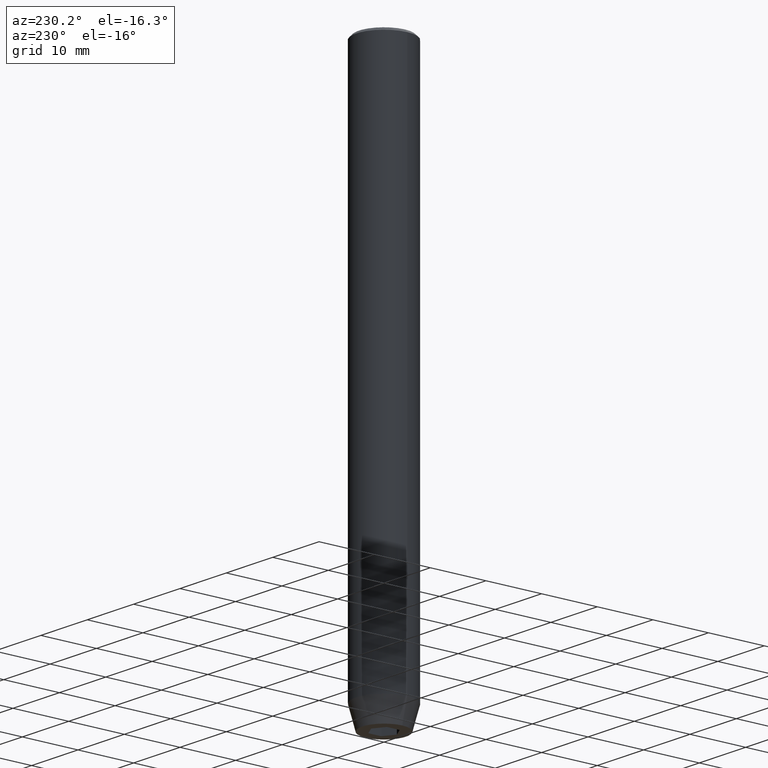
[diagram: clean part render]
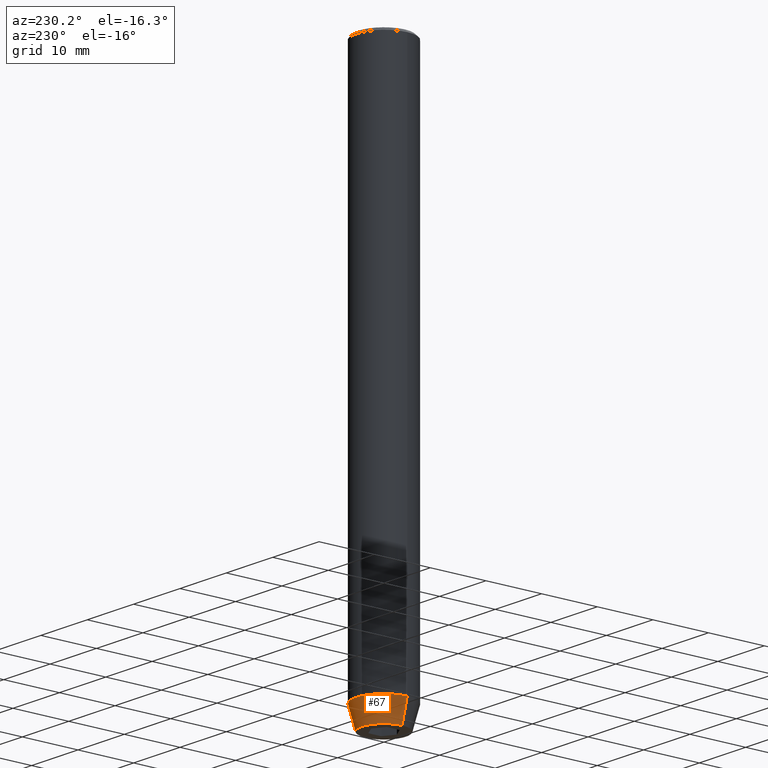
[diagram: same view with one face highlighted and labeled with its STEP entity id]
A machine part, auxiliary view. The second image highlights one B-rep face of the part: STEP entity #67.
In plain terms, the highlighted conical surface has half-angle 15 deg.
Its self-contained STEP definition (entity closure, byte-faithful):
#15 = EDGE_CURVE ( 'NONE', #587, #43, #141, .T. ) ;
#38 = ORIENTED_EDGE ( 'NONE', *, *, #61, .T. ) ;
#43 = VERTEX_POINT ( 'NONE', #534 ) ;
#45 = CARTESIAN_POINT ( 'NONE',  ( 5.000000000000000000, 0.000000000000000000, -96.00000000000000000 ) ) ;
#61 = EDGE_CURVE ( 'NONE', #43, #163, #347, .T. ) ;
#64 = VECTOR ( 'NONE', #93, 1000.000000000000114 ) ;
#67 = ADVANCED_FACE ( 'NONE', ( #169 ), #105, .T. ) ;
#70 = ORIENTED_EDGE ( 'NONE', *, *, #185, .F. ) ;
#71 = VERTEX_POINT ( 'NONE', #45 ) ;
#93 = DIRECTION ( 'NONE',  ( -0.2588190451025210725, 3.169619151431769255E-17, 0.9659258262890680902 ) ) ;
#105 = CONICAL_SURFACE ( 'NONE', #142, 5.000000000000000000, 0.2617993877991497964 ) ;
#107 = CIRCLE ( 'NONE', #256, 5.000000000000000000 ) ;
#123 = DIRECTION ( 'NONE',  ( 1.000000000000000000, 0.000000000000000000, 0.000000000000000000 ) ) ;
#125 = DIRECTION ( 'NONE',  ( 1.000000000000000000, 0.000000000000000000, 0.000000000000000000 ) ) ;
#140 = DIRECTION ( 'NONE',  ( -0.000000000000000000, -0.000000000000000000, 1.000000000000000000 ) ) ;
#141 = CIRCLE ( 'NONE', #471, 3.928203230275506996 ) ;
#142 = AXIS2_PLACEMENT_3D ( 'NONE', #393, #309, #125 ) ;
#159 = ORIENTED_EDGE ( 'NONE', *, *, #15, .T. ) ;
#160 = VECTOR ( 'NONE', #385, 1000.000000000000114 ) ;
#163 = VERTEX_POINT ( 'NONE', #518 ) ;
#169 = FACE_OUTER_BOUND ( 'NONE', #261, .T. ) ;
#177 = CARTESIAN_POINT ( 'NONE',  ( -5.000000000000000000, 6.123233995736766282E-16, -96.00000000000000000 ) ) ;
#185 = EDGE_CURVE ( 'NONE', #587, #71, #206, .T. ) ;
#206 = LINE ( 'NONE', #431, #160 ) ;
#244 = DIRECTION ( 'NONE',  ( 1.000000000000000000, 0.000000000000000000, 0.000000000000000000 ) ) ;
#256 = AXIS2_PLACEMENT_3D ( 'NONE', #318, #140, #123 ) ;
#261 = EDGE_LOOP ( 'NONE', ( #159, #38, #366, #70 ) ) ;
#309 = DIRECTION ( 'NONE',  ( -0.000000000000000000, -0.000000000000000000, 1.000000000000000000 ) ) ;
#318 = CARTESIAN_POINT ( 'NONE',  ( 0.000000000000000000, 0.000000000000000000, -96.00000000000000000 ) ) ;
#347 = LINE ( 'NONE', #177, #64 ) ;
#349 = CARTESIAN_POINT ( 'NONE',  ( 3.928203230275506996, 0.000000000000000000, -100.0000000000000000 ) ) ;
#366 = ORIENTED_EDGE ( 'NONE', *, *, #427, .F. ) ;
#385 = DIRECTION ( 'NONE',  ( 0.2588190451025210725, 0.000000000000000000, 0.9659258262890680902 ) ) ;
#393 = CARTESIAN_POINT ( 'NONE',  ( 0.000000000000000000, 0.000000000000000000, -96.00000000000000000 ) ) ;
#427 = EDGE_CURVE ( 'NONE', #71, #163, #107, .T. ) ;
#431 = CARTESIAN_POINT ( 'NONE',  ( 5.000000000000000000, 0.000000000000000000, -96.00000000000000000 ) ) ;
#471 = AXIS2_PLACEMENT_3D ( 'NONE', #474, #531, #244 ) ;
#474 = CARTESIAN_POINT ( 'NONE',  ( 0.000000000000000000, 0.000000000000000000, -100.0000000000000000 ) ) ;
#518 = CARTESIAN_POINT ( 'NONE',  ( -5.000000000000000000, 6.123233995736766282E-16, -96.00000000000000000 ) ) ;
#531 = DIRECTION ( 'NONE',  ( -0.000000000000000000, -0.000000000000000000, 1.000000000000000000 ) ) ;
#534 = CARTESIAN_POINT ( 'NONE',  ( -3.928203230275506996, 5.466947754046979141E-16, -100.0000000000000000 ) ) ;
#587 = VERTEX_POINT ( 'NONE', #349 ) ;